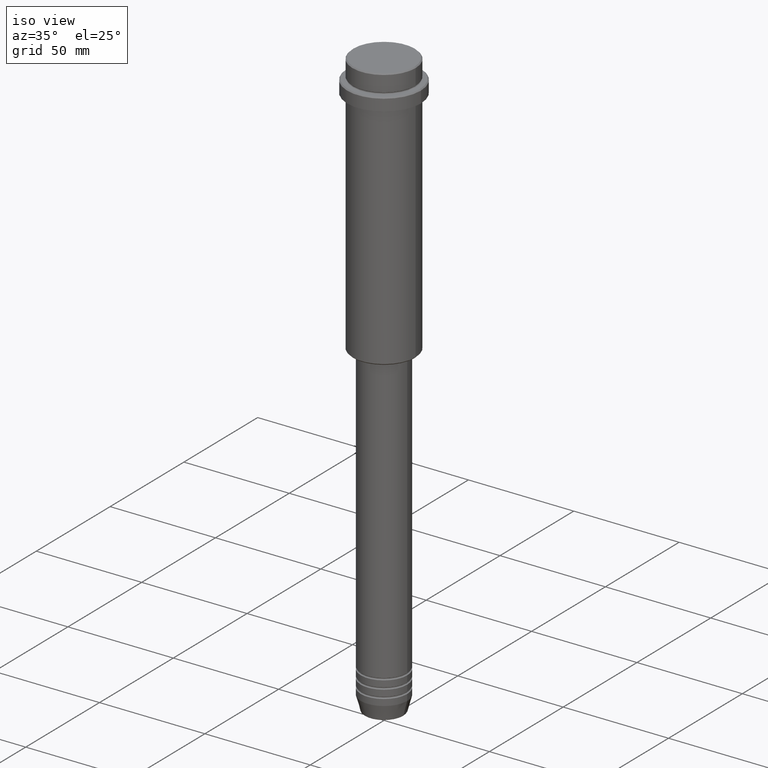
[diagram: clean part render]
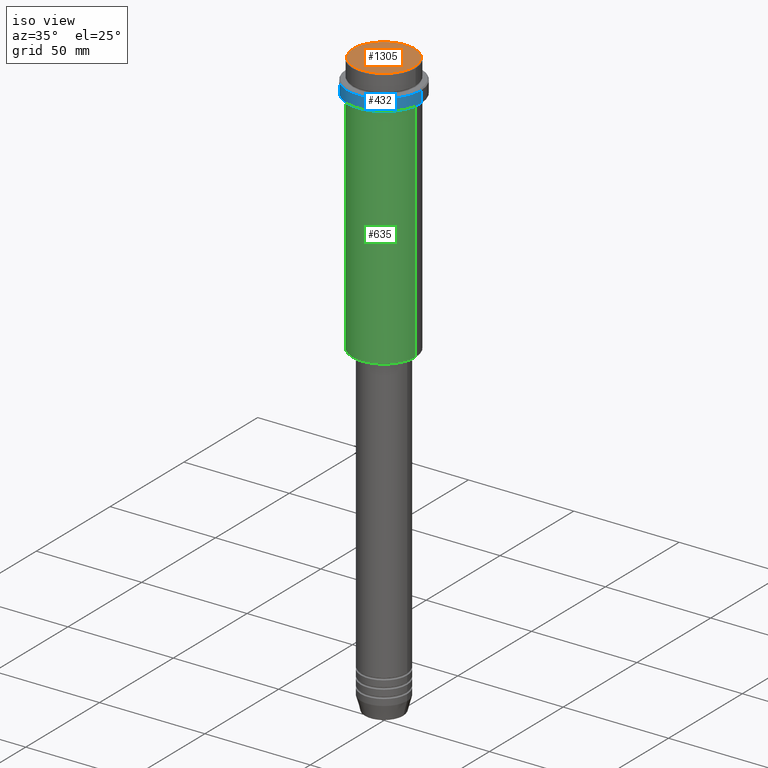
[diagram: same view with three faces highlighted in distinct colors, each labeled with its STEP entity id]
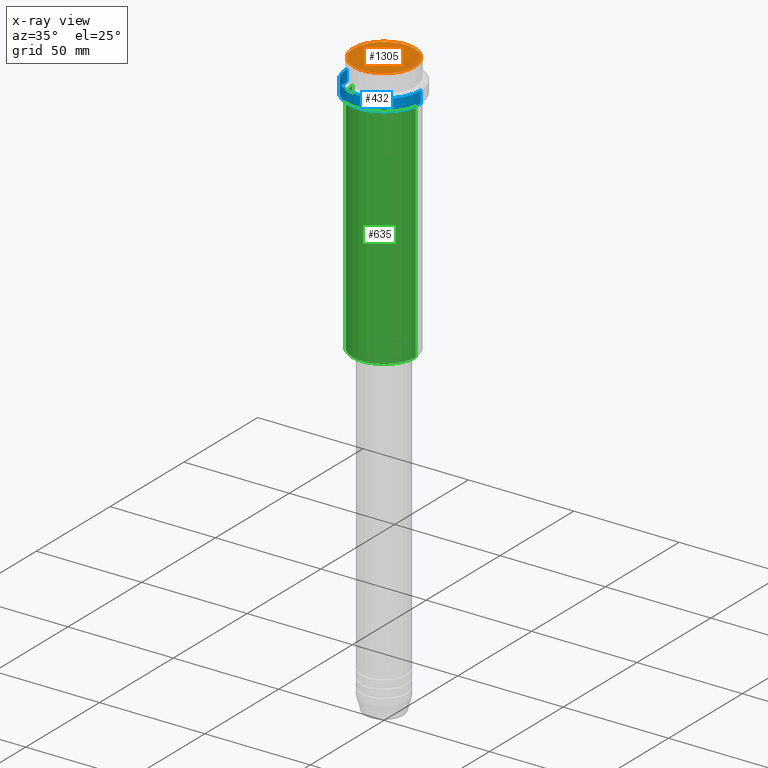
[diagram: x-ray of the same camera — body ghosted, the three highlighted faces saturated]
A machine part, iso view with three faces highlighted in distinct colors.
The next image is the same camera in x-ray (body ghosted, the three faces saturated) — at least one of them is partly hidden behind the body in this view.
Their STEP definitions:

[orange] entity #1305 — the highlighted planar face has unit normal (0, -0, 1).
#6 = DIRECTION ( 'NONE',  ( 1.000000000000000000, 0.000000000000000000, 0.000000000000000000 ) ) ;
#103 = CARTESIAN_POINT ( 'NONE',  ( 0.000000000000000000, 0.000000000000000000, 0.000000000000000000 ) ) ;
#113 = CARTESIAN_POINT ( 'NONE',  ( -14.49999999999992717, 0.000000000000000000, 0.000000000000000000 ) ) ;
#120 = DIRECTION ( 'NONE',  ( 1.000000000000000000, 0.000000000000000000, 0.000000000000000000 ) ) ;
#172 = ORIENTED_EDGE ( 'NONE', *, *, #1364, .T. ) ;
#226 = DIRECTION ( 'NONE',  ( -0.000000000000000000, -0.000000000000000000, 1.000000000000000000 ) ) ;
#240 = AXIS2_PLACEMENT_3D ( 'NONE', #1188, #977, #6 ) ;
#293 = VERTEX_POINT ( 'NONE', #1207 ) ;
#307 = AXIS2_PLACEMENT_3D ( 'NONE', #1357, #537, #120 ) ;
#470 = ORIENTED_EDGE ( 'NONE', *, *, #1094, .T. ) ;
#537 = DIRECTION ( 'NONE',  ( 0.000000000000000000, -0.000000000000000000, 1.000000000000000000 ) ) ;
#557 = CIRCLE ( 'NONE', #240, 14.49999999999992717 ) ;
#662 = DIRECTION ( 'NONE',  ( 1.000000000000000000, 0.000000000000000000, 0.000000000000000000 ) ) ;
#837 = EDGE_LOOP ( 'NONE', ( #470, #172 ) ) ;
#977 = DIRECTION ( 'NONE',  ( -0.000000000000000000, -0.000000000000000000, 1.000000000000000000 ) ) ;
#1036 = FACE_OUTER_BOUND ( 'NONE', #837, .T. ) ;
#1044 = AXIS2_PLACEMENT_3D ( 'NONE', #103, #226, #662 ) ;
#1094 = EDGE_CURVE ( 'NONE', #1317, #293, #557, .T. ) ;
#1112 = CIRCLE ( 'NONE', #1044, 14.49999999999992717 ) ;
#1188 = CARTESIAN_POINT ( 'NONE',  ( 0.000000000000000000, 0.000000000000000000, 0.000000000000000000 ) ) ;
#1207 = CARTESIAN_POINT ( 'NONE',  ( 14.49999999999992717, 1.806354028742341069E-15, 0.000000000000000000 ) ) ;
#1251 = PLANE ( 'NONE',  #307 ) ;
#1305 = ADVANCED_FACE ( 'NONE', ( #1036 ), #1251, .T. ) ;
#1317 = VERTEX_POINT ( 'NONE', #113 ) ;
#1357 = CARTESIAN_POINT ( 'NONE',  ( 0.000000000000000000, 0.000000000000000000, 0.000000000000000000 ) ) ;
#1364 = EDGE_CURVE ( 'NONE', #293, #1317, #1112, .T. ) ;

[blue] entity #432 — the highlighted cylindrical surface (partial cylindrical patch) has radius 17.5 mm, axis along (-0, -0, 1).
#49 = EDGE_CURVE ( 'NONE', #1025, #927, #624, .T. ) ;
#80 = FACE_OUTER_BOUND ( 'NONE', #873, .T. ) ;
#89 = DIRECTION ( 'NONE',  ( -0.000000000000000000, -0.000000000000000000, 1.000000000000000000 ) ) ;
#112 = ORIENTED_EDGE ( 'NONE', *, *, #1370, .F. ) ;
#153 = AXIS2_PLACEMENT_3D ( 'NONE', #185, #89, #205 ) ;
#185 = CARTESIAN_POINT ( 'NONE',  ( 0.000000000000000000, 0.000000000000000000, 0.000000000000000000 ) ) ;
#205 = DIRECTION ( 'NONE',  ( 1.000000000000000000, 0.000000000000000000, 0.000000000000000000 ) ) ;
#221 = AXIS2_PLACEMENT_3D ( 'NONE', #450, #1313, #922 ) ;
#310 = EDGE_CURVE ( 'NONE', #381, #608, #1065, .T. ) ;
#333 = CARTESIAN_POINT ( 'NONE',  ( 17.50000000000000000, 0.000000000000000000, -15.00000000000000000 ) ) ;
#381 = VERTEX_POINT ( 'NONE', #780 ) ;
#385 = EDGE_CURVE ( 'NONE', #608, #1025, #1212, .T. ) ;
#432 = ADVANCED_FACE ( 'NONE', ( #80 ), #1267, .T. ) ;
#450 = CARTESIAN_POINT ( 'NONE',  ( 0.000000000000000000, 0.000000000000000000, -15.00000000000000000 ) ) ;
#489 = DIRECTION ( 'NONE',  ( 0.000000000000000000, 0.000000000000000000, -1.000000000000000000 ) ) ;
#527 = DIRECTION ( 'NONE',  ( -0.000000000000000000, -0.000000000000000000, 1.000000000000000000 ) ) ;
#536 = VECTOR ( 'NONE', #1109, 1000.000000000000000 ) ;
#551 = LINE ( 'NONE', #1205, #887 ) ;
#608 = VERTEX_POINT ( 'NONE', #333 ) ;
#612 = ORIENTED_EDGE ( 'NONE', *, *, #49, .T. ) ;
#618 = ORIENTED_EDGE ( 'NONE', *, *, #310, .T. ) ;
#619 = CARTESIAN_POINT ( 'NONE',  ( -17.50000000000000000, 2.143131898507868248E-15, -9.499999999999971578 ) ) ;
#624 = CIRCLE ( 'NONE', #1176, 17.50000000000000000 ) ;
#670 = CARTESIAN_POINT ( 'NONE',  ( 17.50000000000000000, 0.000000000000000000, 0.000000000000000000 ) ) ;
#724 = DIRECTION ( 'NONE',  ( 1.000000000000000000, 0.000000000000000000, 0.000000000000000000 ) ) ;
#780 = CARTESIAN_POINT ( 'NONE',  ( -17.50000000000000000, 2.143131898507868248E-15, -15.00000000000000000 ) ) ;
#873 = EDGE_LOOP ( 'NONE', ( #112, #618, #1215, #612 ) ) ;
#887 = VECTOR ( 'NONE', #527, 1000.000000000000000 ) ;
#922 = DIRECTION ( 'NONE',  ( 1.000000000000000000, 0.000000000000000000, 0.000000000000000000 ) ) ;
#927 = VERTEX_POINT ( 'NONE', #619 ) ;
#966 = CARTESIAN_POINT ( 'NONE',  ( 17.50000000000000000, 0.000000000000000000, -9.499999999999971578 ) ) ;
#1025 = VERTEX_POINT ( 'NONE', #966 ) ;
#1065 = CIRCLE ( 'NONE', #221, 17.50000000000000000 ) ;
#1109 = DIRECTION ( 'NONE',  ( -0.000000000000000000, -0.000000000000000000, 1.000000000000000000 ) ) ;
#1176 = AXIS2_PLACEMENT_3D ( 'NONE', #1250, #489, #724 ) ;
#1205 = CARTESIAN_POINT ( 'NONE',  ( -17.50000000000000000, 2.143131898507868248E-15, 0.000000000000000000 ) ) ;
#1212 = LINE ( 'NONE', #670, #536 ) ;
#1215 = ORIENTED_EDGE ( 'NONE', *, *, #385, .T. ) ;
#1250 = CARTESIAN_POINT ( 'NONE',  ( 0.000000000000000000, 0.000000000000000000, -9.499999999999971578 ) ) ;
#1267 = CYLINDRICAL_SURFACE ( 'NONE', #153, 17.50000000000000000 ) ;
#1313 = DIRECTION ( 'NONE',  ( -0.000000000000000000, -0.000000000000000000, 1.000000000000000000 ) ) ;
#1370 = EDGE_CURVE ( 'NONE', #381, #927, #551, .T. ) ;

[green] entity #635 — the highlighted cylindrical surface (partial cylindrical patch) has radius 15 mm, axis along (-0, -0, 1).
#18 = VERTEX_POINT ( 'NONE', #50 ) ;
#50 = CARTESIAN_POINT ( 'NONE',  ( -15.00000000000000000, 1.836970198721029589E-15, -124.4999999999999574 ) ) ;
#55 = AXIS2_PLACEMENT_3D ( 'NONE', #1028, #707, #1233 ) ;
#126 = CYLINDRICAL_SURFACE ( 'NONE', #127, 15.00000000000000000 ) ;
#127 = AXIS2_PLACEMENT_3D ( 'NONE', #1194, #559, #993 ) ;
#144 = ORIENTED_EDGE ( 'NONE', *, *, #894, .F. ) ;
#147 = AXIS2_PLACEMENT_3D ( 'NONE', #963, #937, #1260 ) ;
#178 = ORIENTED_EDGE ( 'NONE', *, *, #866, .F. ) ;
#391 = CARTESIAN_POINT ( 'NONE',  ( 15.00000000000000000, 0.000000000000000000, 0.000000000000000000 ) ) ;
#416 = DIRECTION ( 'NONE',  ( -0.000000000000000000, -0.000000000000000000, 1.000000000000000000 ) ) ;
#539 = EDGE_CURVE ( 'NONE', #18, #999, #745, .T. ) ;
#546 = EDGE_CURVE ( 'NONE', #999, #637, #1168, .T. ) ;
#559 = DIRECTION ( 'NONE',  ( -0.000000000000000000, -0.000000000000000000, 1.000000000000000000 ) ) ;
#600 = LINE ( 'NONE', #1058, #997 ) ;
#635 = ADVANCED_FACE ( 'NONE', ( #1211 ), #126, .T. ) ;
#637 = VERTEX_POINT ( 'NONE', #1206 ) ;
#639 = CARTESIAN_POINT ( 'NONE',  ( -15.00000000000000355, 1.836970198721029983E-15, -16.00000000000000000 ) ) ;
#707 = DIRECTION ( 'NONE',  ( -0.000000000000000000, -0.000000000000000000, 1.000000000000000000 ) ) ;
#745 = CIRCLE ( 'NONE', #147, 15.00000000000000000 ) ;
#808 = EDGE_LOOP ( 'NONE', ( #144, #1089, #923, #178 ) ) ;
#851 = DIRECTION ( 'NONE',  ( -0.000000000000000000, -0.000000000000000000, 1.000000000000000000 ) ) ;
#866 = EDGE_CURVE ( 'NONE', #1409, #637, #1061, .T. ) ;
#881 = VECTOR ( 'NONE', #416, 1000.000000000000000 ) ;
#894 = EDGE_CURVE ( 'NONE', #18, #1409, #600, .T. ) ;
#923 = ORIENTED_EDGE ( 'NONE', *, *, #546, .T. ) ;
#937 = DIRECTION ( 'NONE',  ( -0.000000000000000000, -0.000000000000000000, 1.000000000000000000 ) ) ;
#963 = CARTESIAN_POINT ( 'NONE',  ( 0.000000000000000000, 0.000000000000000000, -124.4999999999999574 ) ) ;
#993 = DIRECTION ( 'NONE',  ( 1.000000000000000000, 0.000000000000000000, 0.000000000000000000 ) ) ;
#997 = VECTOR ( 'NONE', #851, 1000.000000000000000 ) ;
#999 = VERTEX_POINT ( 'NONE', #1163 ) ;
#1028 = CARTESIAN_POINT ( 'NONE',  ( 0.000000000000000000, 0.000000000000000000, -16.00000000000000000 ) ) ;
#1058 = CARTESIAN_POINT ( 'NONE',  ( -15.00000000000000000, 1.836970198721029589E-15, 0.000000000000000000 ) ) ;
#1061 = CIRCLE ( 'NONE', #55, 15.00000000000000178 ) ;
#1089 = ORIENTED_EDGE ( 'NONE', *, *, #539, .T. ) ;
#1163 = CARTESIAN_POINT ( 'NONE',  ( 15.00000000000000000, 0.000000000000000000, -124.4999999999999574 ) ) ;
#1168 = LINE ( 'NONE', #391, #881 ) ;
#1194 = CARTESIAN_POINT ( 'NONE',  ( 0.000000000000000000, 0.000000000000000000, 0.000000000000000000 ) ) ;
#1206 = CARTESIAN_POINT ( 'NONE',  ( 15.00000000000000178, 0.000000000000000000, -16.00000000000000000 ) ) ;
#1211 = FACE_OUTER_BOUND ( 'NONE', #808, .T. ) ;
#1233 = DIRECTION ( 'NONE',  ( 1.000000000000000000, 0.000000000000000000, 0.000000000000000000 ) ) ;
#1260 = DIRECTION ( 'NONE',  ( -1.000000000000000000, 0.000000000000000000, 0.000000000000000000 ) ) ;
#1409 = VERTEX_POINT ( 'NONE', #639 ) ;